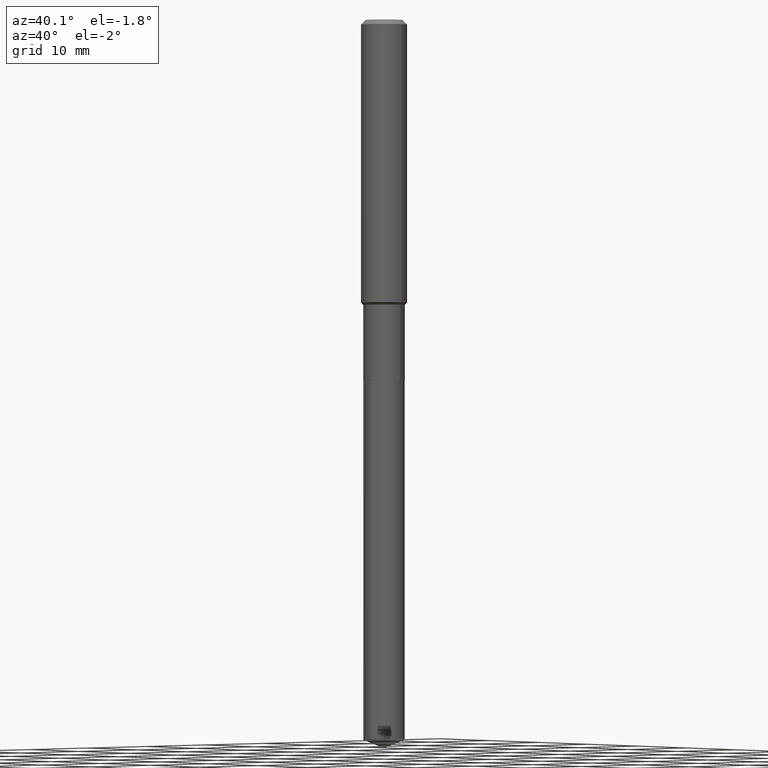
[diagram: clean part render]
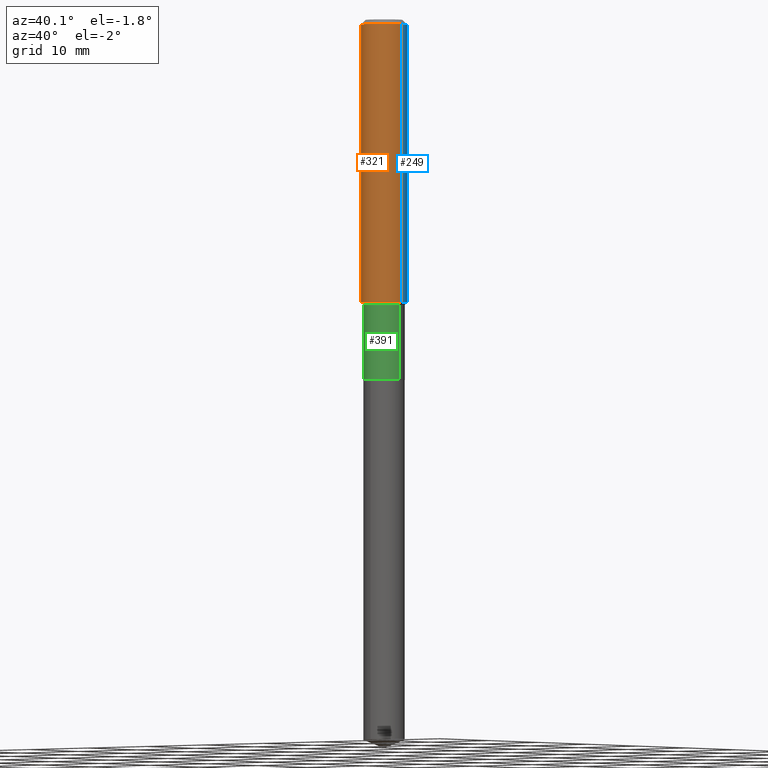
[diagram: same view with three faces highlighted in distinct colors, each labeled with its STEP entity id]
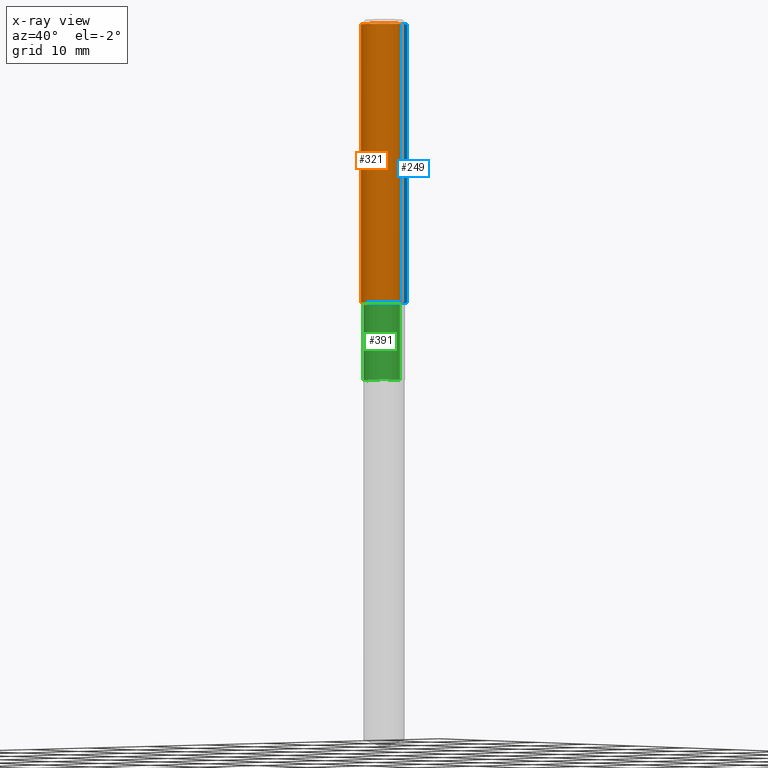
[diagram: x-ray of the same camera — body ghosted, the three highlighted faces saturated]
A machine part, auxiliary view with three faces highlighted in distinct colors.
The next image is the same camera in x-ray (body ghosted, the three faces saturated) — at least one of them is partly hidden behind the body in this view.
Their STEP definitions:

[orange] entity #321 — the highlighted cylindrical surface (edge-blend (fillet) strip) has radius 2.9997 mm, axis along (-0, 0, 1).
#10 = VECTOR ( 'NONE', #164, 39.37007874015748143 ) ;
#17 = CARTESIAN_POINT ( 'NONE',  ( 0.1180999999999999966, -9.071566814582237199E-16, -0.02362000000000014088 ) ) ;
#84 = LINE ( 'NONE', #465, #279 ) ;
#90 = CARTESIAN_POINT ( 'NONE',  ( -0.1180999999999999966, -1.737597171946951303E-15, -0.02362000000000014088 ) ) ;
#105 = AXIS2_PLACEMENT_3D ( 'NONE', #405, #372, #190 ) ;
#111 = DIRECTION ( 'NONE',  ( -2.445468806185136597E-29, 3.491481338843145583E-15, 1.000000000000000000 ) ) ;
#113 = EDGE_CURVE ( 'NONE', #165, #170, #84, .T. ) ;
#151 = CARTESIAN_POINT ( 'NONE',  ( 0.000000000000000000, 0.000000000000000000, 0.000000000000000000 ) ) ;
#158 = EDGE_CURVE ( 'NONE', #234, #455, #168, .T. ) ;
#164 = DIRECTION ( 'NONE',  ( -2.445468806185136877E-29, 3.491481338843145188E-15, 1.000000000000000000 ) ) ;
#165 = VERTEX_POINT ( 'NONE', #427 ) ;
#168 = LINE ( 'NONE', #276, #10 ) ;
#170 = VERTEX_POINT ( 'NONE', #17 ) ;
#176 = EDGE_CURVE ( 'NONE', #455, #170, #302, .T. ) ;
#190 = DIRECTION ( 'NONE',  ( 1.000000000000000000, -6.982962677686270655E-15, 0.000000000000000000 ) ) ;
#222 = CYLINDRICAL_SURFACE ( 'NONE', #344, 0.1181000000000000799 ) ;
#234 = VERTEX_POINT ( 'NONE', #478 ) ;
#235 = ORIENTED_EDGE ( 'NONE', *, *, #113, .T. ) ;
#248 = DIRECTION ( 'NONE',  ( 1.000000000000000000, -6.982962677686266711E-15, 4.876176775795936353E-29 ) ) ;
#264 = ORIENTED_EDGE ( 'NONE', *, *, #346, .T. ) ;
#272 = ORIENTED_EDGE ( 'NONE', *, *, #176, .F. ) ;
#276 = CARTESIAN_POINT ( 'NONE',  ( -0.1181000000000000799, 8.391509709326788873E-16, -5.809262341591047988E-30 ) ) ;
#279 = VECTOR ( 'NONE', #381, 39.37007874015748143 ) ;
#302 = CIRCLE ( 'NONE', #398, 0.1180999999999999966 ) ;
#307 = DIRECTION ( 'NONE',  ( -2.445468806185136597E-29, 3.491481338843145583E-15, 1.000000000000000000 ) ) ;
#311 = CIRCLE ( 'NONE', #105, 0.1181000000000001632 ) ;
#321 = ADVANCED_FACE ( 'NONE', ( #368 ), #222, .T. ) ;
#344 = AXIS2_PLACEMENT_3D ( 'NONE', #151, #111, #248 ) ;
#346 = EDGE_CURVE ( 'NONE', #234, #165, #311, .T. ) ;
#368 = FACE_OUTER_BOUND ( 'NONE', #421, .T. ) ;
#372 = DIRECTION ( 'NONE',  ( -2.445468806185136597E-29, 3.491481338843145583E-15, 1.000000000000000000 ) ) ;
#373 = ORIENTED_EDGE ( 'NONE', *, *, #158, .F. ) ;
#381 = DIRECTION ( 'NONE',  ( -2.445468806185136877E-29, 3.491481338843145188E-15, 1.000000000000000000 ) ) ;
#398 = AXIS2_PLACEMENT_3D ( 'NONE', #468, #307, #423 ) ;
#405 = CARTESIAN_POINT ( 'NONE',  ( 3.551798894103292952E-29, -5.071027496535786304E-15, -1.452400000000000357 ) ) ;
#421 = EDGE_LOOP ( 'NONE', ( #373, #264, #235, #272 ) ) ;
#423 = DIRECTION ( 'NONE',  ( 1.000000000000000000, -6.982962677686266711E-15, 0.000000000000000000 ) ) ;
#427 = CARTESIAN_POINT ( 'NONE',  ( 0.1181000000000001632, -5.895715388770535355E-15, -1.452400000000000357 ) ) ;
#455 = VERTEX_POINT ( 'NONE', #90 ) ;
#465 = CARTESIAN_POINT ( 'NONE',  ( 0.1181000000000000799, -8.246878922347486570E-16, 5.758764772215004644E-30 ) ) ;
#468 = CARTESIAN_POINT ( 'NONE',  ( 5.776197320209327532E-31, -8.246878922347559293E-17, -0.02362000000000014088 ) ) ;
#478 = CARTESIAN_POINT ( 'NONE',  ( -0.1181000000000001632, -4.231876525603106529E-15, -1.452400000000000357 ) ) ;

[blue] entity #249 — the highlighted cylindrical surface (edge-blend (fillet) strip) has radius 2.9997 mm, axis along (-0, 0, 1).
#10 = VECTOR ( 'NONE', #164, 39.37007874015748143 ) ;
#17 = CARTESIAN_POINT ( 'NONE',  ( 0.1180999999999999966, -9.071566814582237199E-16, -0.02362000000000014088 ) ) ;
#19 = EDGE_CURVE ( 'NONE', #165, #234, #71, .T. ) ;
#26 = CARTESIAN_POINT ( 'NONE',  ( 5.776197320209327532E-31, -8.246878922347559293E-17, -0.02362000000000014088 ) ) ;
#46 = ORIENTED_EDGE ( 'NONE', *, *, #19, .T. ) ;
#65 = DIRECTION ( 'NONE',  ( -2.445468806185136597E-29, 3.491481338843145583E-15, 1.000000000000000000 ) ) ;
#68 = EDGE_CURVE ( 'NONE', #170, #455, #205, .T. ) ;
#71 = CIRCLE ( 'NONE', #425, 0.1181000000000001632 ) ;
#84 = LINE ( 'NONE', #465, #279 ) ;
#90 = CARTESIAN_POINT ( 'NONE',  ( -0.1180999999999999966, -1.737597171946951303E-15, -0.02362000000000014088 ) ) ;
#98 = EDGE_LOOP ( 'NONE', ( #46, #283, #274, #206 ) ) ;
#113 = EDGE_CURVE ( 'NONE', #165, #170, #84, .T. ) ;
#158 = EDGE_CURVE ( 'NONE', #234, #455, #168, .T. ) ;
#164 = DIRECTION ( 'NONE',  ( -2.445468806185136877E-29, 3.491481338843145188E-15, 1.000000000000000000 ) ) ;
#165 = VERTEX_POINT ( 'NONE', #427 ) ;
#168 = LINE ( 'NONE', #276, #10 ) ;
#170 = VERTEX_POINT ( 'NONE', #17 ) ;
#188 = CARTESIAN_POINT ( 'NONE',  ( 0.000000000000000000, 0.000000000000000000, 0.000000000000000000 ) ) ;
#205 = CIRCLE ( 'NONE', #220, 0.1180999999999999966 ) ;
#206 = ORIENTED_EDGE ( 'NONE', *, *, #113, .F. ) ;
#220 = AXIS2_PLACEMENT_3D ( 'NONE', #26, #253, #475 ) ;
#234 = VERTEX_POINT ( 'NONE', #478 ) ;
#249 = ADVANCED_FACE ( 'NONE', ( #328 ), #439, .T. ) ;
#253 = DIRECTION ( 'NONE',  ( -2.445468806185136597E-29, 3.491481338843145583E-15, 1.000000000000000000 ) ) ;
#274 = ORIENTED_EDGE ( 'NONE', *, *, #68, .F. ) ;
#276 = CARTESIAN_POINT ( 'NONE',  ( -0.1181000000000000799, 8.391509709326788873E-16, -5.809262341591047988E-30 ) ) ;
#277 = CARTESIAN_POINT ( 'NONE',  ( 3.551798894103292952E-29, -5.071027496535786304E-15, -1.452400000000000357 ) ) ;
#279 = VECTOR ( 'NONE', #381, 39.37007874015748143 ) ;
#283 = ORIENTED_EDGE ( 'NONE', *, *, #158, .T. ) ;
#295 = DIRECTION ( 'NONE',  ( 1.000000000000000000, -6.982962677686266711E-15, 4.876176775795936353E-29 ) ) ;
#317 = DIRECTION ( 'NONE',  ( 1.000000000000000000, -6.982962677686270655E-15, 0.000000000000000000 ) ) ;
#328 = FACE_OUTER_BOUND ( 'NONE', #98, .T. ) ;
#360 = DIRECTION ( 'NONE',  ( -2.445468806185136597E-29, 3.491481338843145583E-15, 1.000000000000000000 ) ) ;
#381 = DIRECTION ( 'NONE',  ( -2.445468806185136877E-29, 3.491481338843145188E-15, 1.000000000000000000 ) ) ;
#425 = AXIS2_PLACEMENT_3D ( 'NONE', #277, #360, #317 ) ;
#427 = CARTESIAN_POINT ( 'NONE',  ( 0.1181000000000001632, -5.895715388770535355E-15, -1.452400000000000357 ) ) ;
#439 = CYLINDRICAL_SURFACE ( 'NONE', #479, 0.1181000000000000799 ) ;
#455 = VERTEX_POINT ( 'NONE', #90 ) ;
#465 = CARTESIAN_POINT ( 'NONE',  ( 0.1181000000000000799, -8.246878922347486570E-16, 5.758764772215004644E-30 ) ) ;
#475 = DIRECTION ( 'NONE',  ( 1.000000000000000000, -6.982962677686266711E-15, 0.000000000000000000 ) ) ;
#478 = CARTESIAN_POINT ( 'NONE',  ( -0.1181000000000001632, -4.231876525603106529E-15, -1.452400000000000357 ) ) ;
#479 = AXIS2_PLACEMENT_3D ( 'NONE', #188, #65, #295 ) ;

[green] entity #391 — the highlighted cylindrical surface (edge-blend (fillet) strip) has radius 2.7 mm, axis along (-0, 0, 1).
#4 = VERTEX_POINT ( 'NONE', #208 ) ;
#11 = AXIS2_PLACEMENT_3D ( 'NONE', #358, #402, #297 ) ;
#114 = AXIS2_PLACEMENT_3D ( 'NONE', #117, #119, #337 ) ;
#117 = CARTESIAN_POINT ( 'NONE',  ( 0.000000000000000000, 0.000000000000000000, 0.000000000000000000 ) ) ;
#119 = DIRECTION ( 'NONE',  ( -2.445468806185136597E-29, 3.491481338843145583E-15, 1.000000000000000000 ) ) ;
#122 = CARTESIAN_POINT ( 'NONE',  ( 4.523872744561885153E-29, -6.458891328725936072E-15, -1.849900000000000322 ) ) ;
#123 = CARTESIAN_POINT ( 'NONE',  ( 0.1062999999999999640, -7.422889326380500401E-16, 5.183375912671078649E-30 ) ) ;
#129 = DIRECTION ( 'NONE',  ( -2.445468806185136597E-29, 3.491481338843145583E-15, 1.000000000000000000 ) ) ;
#142 = VERTEX_POINT ( 'NONE', #354 ) ;
#145 = EDGE_CURVE ( 'NONE', #142, #312, #384, .T. ) ;
#156 = EDGE_LOOP ( 'NONE', ( #203, #200, #209, #377 ) ) ;
#197 = EDGE_CURVE ( 'NONE', #306, #4, #408, .T. ) ;
#200 = ORIENTED_EDGE ( 'NONE', *, *, #435, .T. ) ;
#203 = ORIENTED_EDGE ( 'NONE', *, *, #197, .F. ) ;
#204 = DIRECTION ( 'NONE',  ( -2.445468806185136877E-29, 3.491481338843145188E-15, 1.000000000000000000 ) ) ;
#208 = CARTESIAN_POINT ( 'NONE',  ( -0.1062999999999999501, -5.030252224417050365E-15, -1.464200000000000390 ) ) ;
#209 = ORIENTED_EDGE ( 'NONE', *, *, #145, .T. ) ;
#217 = CARTESIAN_POINT ( 'NONE',  ( -0.1062999999999999640, 7.553069281129862415E-16, -5.228828000940962955E-30 ) ) ;
#219 = CARTESIAN_POINT ( 'NONE',  ( 0.1062999999999999501, -5.854515908972185504E-15, -1.464200000000000390 ) ) ;
#265 = CYLINDRICAL_SURFACE ( 'NONE', #114, 0.1062999999999999640 ) ;
#275 = DIRECTION ( 'NONE',  ( 1.000000000000000000, -6.982962677686269077E-15, 0.000000000000000000 ) ) ;
#297 = DIRECTION ( 'NONE',  ( 1.000000000000000000, -6.982962677686264344E-15, 0.000000000000000000 ) ) ;
#304 = EDGE_CURVE ( 'NONE', #4, #312, #387, .T. ) ;
#306 = VERTEX_POINT ( 'NONE', #332 ) ;
#312 = VERTEX_POINT ( 'NONE', #219 ) ;
#320 = VECTOR ( 'NONE', #204, 39.37007874015748143 ) ;
#332 = CARTESIAN_POINT ( 'NONE',  ( -0.1062999999999999917, -5.030252224417050365E-15, -1.849900000000000322 ) ) ;
#337 = DIRECTION ( 'NONE',  ( 1.000000000000000000, -6.982962677686268288E-15, 4.876176775795936353E-29 ) ) ;
#350 = VECTOR ( 'NONE', #363, 39.37007874015748143 ) ;
#354 = CARTESIAN_POINT ( 'NONE',  ( 0.1063000000000000056, -7.201180261363987000E-15, -1.849900000000000322 ) ) ;
#358 = CARTESIAN_POINT ( 'NONE',  ( 3.580655426016278695E-29, -5.112226976334136155E-15, -1.464200000000000390 ) ) ;
#363 = DIRECTION ( 'NONE',  ( -2.445468806185136877E-29, 3.491481338843145188E-15, 1.000000000000000000 ) ) ;
#377 = ORIENTED_EDGE ( 'NONE', *, *, #304, .F. ) ;
#384 = LINE ( 'NONE', #123, #320 ) ;
#387 = CIRCLE ( 'NONE', #11, 0.1062999999999999501 ) ;
#391 = ADVANCED_FACE ( 'NONE', ( #453 ), #265, .T. ) ;
#402 = DIRECTION ( 'NONE',  ( -2.445468806185136597E-29, 3.491481338843145583E-15, 1.000000000000000000 ) ) ;
#408 = LINE ( 'NONE', #217, #350 ) ;
#426 = CIRCLE ( 'NONE', #451, 0.1063000000000000056 ) ;
#435 = EDGE_CURVE ( 'NONE', #306, #142, #426, .T. ) ;
#451 = AXIS2_PLACEMENT_3D ( 'NONE', #122, #129, #275 ) ;
#453 = FACE_OUTER_BOUND ( 'NONE', #156, .T. ) ;